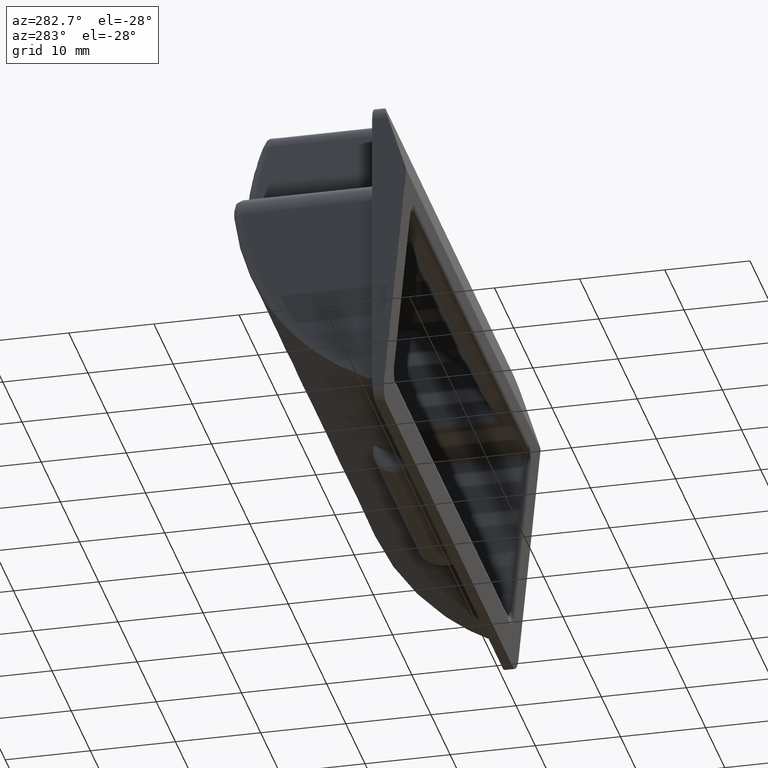
[diagram: clean part render]
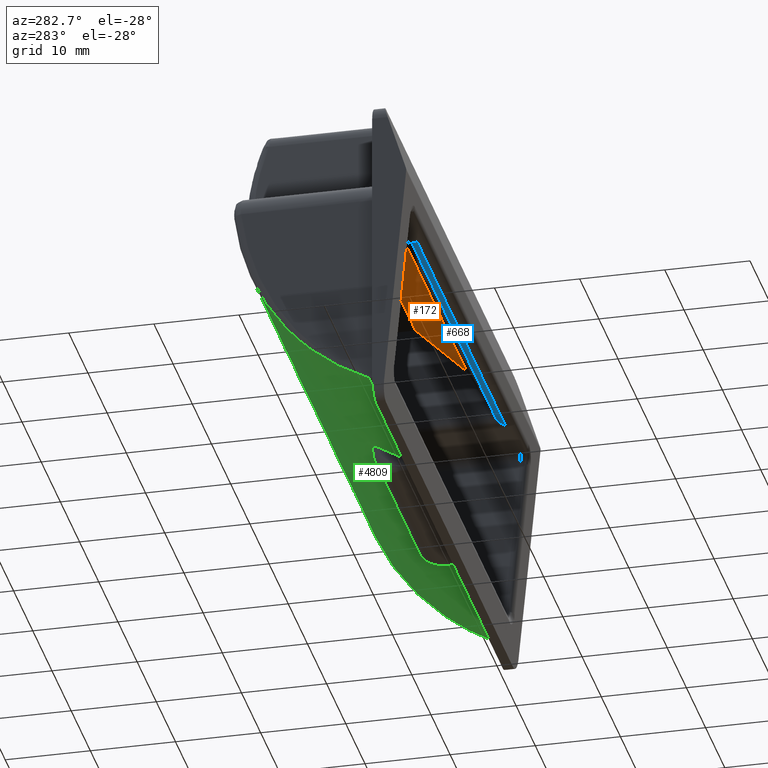
[diagram: same view with three faces highlighted in distinct colors, each labeled with its STEP entity id]
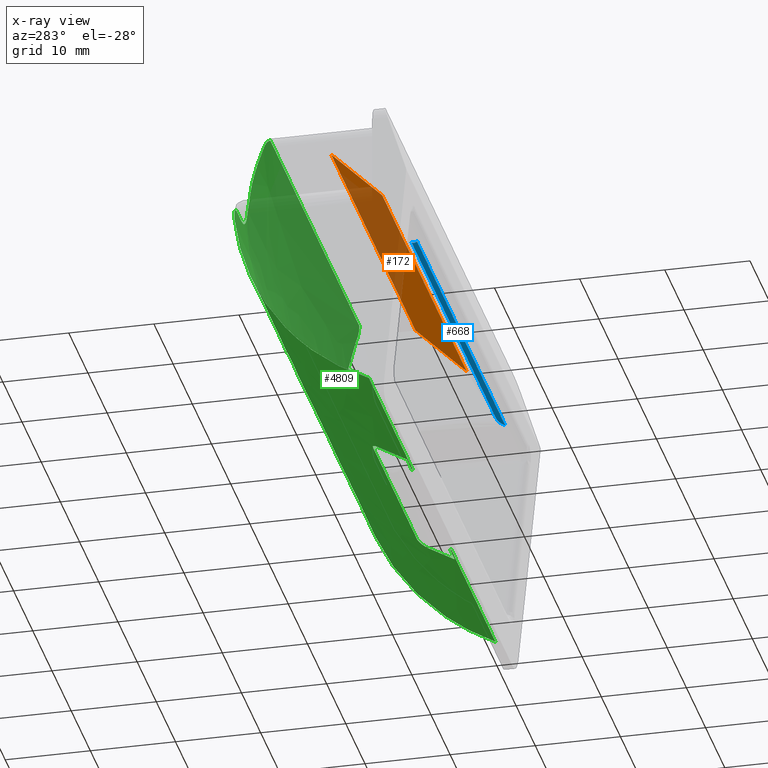
[diagram: x-ray of the same camera — body ghosted, the three highlighted faces saturated]
A machine part, auxiliary view with three faces highlighted in distinct colors.
The next image is the same camera in x-ray (body ghosted, the three faces saturated) — at least one of them is partly hidden behind the body in this view.
Their STEP definitions:

[orange] entity #172 — the highlighted face is a freeform B-spline surface patch.
#10=CARTESIAN_POINT('',(-22.0,1.749999999999800,13.250000000000000));
#11=VERTEX_POINT('',#10);
#41=CARTESIAN_POINT('',(-22.0,7.749999999999799,19.250000000000000));
#42=VERTEX_POINT('',#41);
#48=CARTESIAN_POINT('',(-22.0,7.749999999999799,19.250000000000000));
#49=CARTESIAN_POINT('',(-22.0,1.749999999999800,13.250000000000000));
#50=QUASI_UNIFORM_CURVE('',1,(#48,#49),.UNSPECIFIED.,.F.,.U.);
#51=EDGE_CURVE('',#42,#11,#50,.T.);
#85=CARTESIAN_POINT('',(22.0,1.749999999999800,13.250000000000000));
#86=VERTEX_POINT('',#85);
#92=CARTESIAN_POINT('',(22.0,7.749999999999799,19.250000000000000));
#93=VERTEX_POINT('',#92);
#94=CARTESIAN_POINT('',(22.0,7.749999999999799,19.250000000000000));
#95=CARTESIAN_POINT('',(22.0,1.749999999999800,13.250000000000000));
#96=QUASI_UNIFORM_CURVE('',1,(#94,#95),.UNSPECIFIED.,.F.,.U.);
#97=EDGE_CURVE('',#93,#86,#96,.T.);
#113=CARTESIAN_POINT('',(22.0,1.749999999999800,13.250000000000000));
#114=CARTESIAN_POINT('',(-22.0,1.749999999999800,13.250000000000000));
#115=QUASI_UNIFORM_CURVE('',1,(#113,#114),.UNSPECIFIED.,.F.,.U.);
#116=EDGE_CURVE('',#86,#11,#115,.T.);
#157=CARTESIAN_POINT('',(-24.197799914719461,1.450300011628964,12.950300011629160));
#158=CARTESIAN_POINT('',(-24.197799914719461,8.049700149303176,19.549700149303380));
#159=CARTESIAN_POINT('',(24.197801094891432,1.450300011628964,12.950300011629160));
#160=CARTESIAN_POINT('',(24.197801094891432,8.049700149303176,19.549700149303380));
#161=B_SPLINE_SURFACE_WITH_KNOTS('',1,1,((#157,#159),(#158,#160)),.UNSPECIFIED.,.F.,.F.,.U.,(2,2),(2,2),(0.0,9.332961178225743),(0.0,48.395601009610893),.UNSPECIFIED.);
#162=ORIENTED_EDGE('',*,*,#51,.F.);
#163=CARTESIAN_POINT('',(22.0,7.749999999999799,19.250000000000000));
#164=CARTESIAN_POINT('',(-22.0,7.749999999999799,19.250000000000000));
#165=QUASI_UNIFORM_CURVE('',1,(#163,#164),.UNSPECIFIED.,.F.,.U.);
#166=EDGE_CURVE('',#93,#42,#165,.T.);
#167=ORIENTED_EDGE('',*,*,#166,.F.);
#168=ORIENTED_EDGE('',*,*,#97,.T.);
#169=ORIENTED_EDGE('',*,*,#116,.T.);
#170=EDGE_LOOP('',(#162,#167,#168,#169));
#171=FACE_OUTER_BOUND('',#170,.T.);
#172=ADVANCED_FACE('',(#171),#161,.T.);

[blue] entity #668 — the highlighted face is a freeform B-spline surface patch.
#119=CARTESIAN_POINT('',(22.116360034193949,-1.676941947625150,6.781832924235230));
#120=VERTEX_POINT('',#119);
#134=CARTESIAN_POINT('',(-22.116360034193800,-1.676941947625150,6.781832924235230));
#135=VERTEX_POINT('',#134);
#136=CARTESIAN_POINT('',(22.116360034193949,-1.676941947625150,6.781832924235230));
#137=CARTESIAN_POINT('',(-22.116360034193800,-1.676941947625150,6.781832924235230));
#138=QUASI_UNIFORM_CURVE('',1,(#136,#137),.UNSPECIFIED.,.F.,.U.);
#139=EDGE_CURVE('',#120,#135,#138,.T.);
#296=CARTESIAN_POINT('',(23.0,-2.560581913431275,6.250000000000000));
#297=VERTEX_POINT('',#296);
#303=CARTESIAN_POINT('',(22.116360034193949,-1.676941947625150,6.781832924235230));
#304=CARTESIAN_POINT('',(22.398133917867732,-1.958715831299005,6.250000000000003));
#305=CARTESIAN_POINT('',(23.0,-2.560581913431275,6.250000000000000));
#313=(BOUNDED_CURVE()B_SPLINE_CURVE(2,(#303,#304,#305),.UNSPECIFIED.,.F.,.U.)CURVE()GEOMETRIC_REPRESENTATION_ITEM()QUASI_UNIFORM_CURVE()RATIONAL_B_SPLINE_CURVE((1.0,0.856786751696351,1.0))REPRESENTATION_ITEM(''));
#314=EDGE_CURVE('',#120,#297,#313,.T.);
#333=CARTESIAN_POINT('',(-23.0,-2.560581913431275,6.250000000000000));
#334=VERTEX_POINT('',#333);
#335=CARTESIAN_POINT('',(-23.0,-2.560581913431275,6.250000000000000));
#336=CARTESIAN_POINT('',(-22.398133917867685,-1.958715831298963,6.250000000000000));
#337=CARTESIAN_POINT('',(-22.116360034193839,-1.676941947625114,6.781832924235284));
#345=(BOUNDED_CURVE()B_SPLINE_CURVE(2,(#335,#336,#337),.UNSPECIFIED.,.F.,.U.)CURVE()GEOMETRIC_REPRESENTATION_ITEM()QUASI_UNIFORM_CURVE()RATIONAL_B_SPLINE_CURVE((1.0,0.856786751696335,1.0))REPRESENTATION_ITEM(''));
#346=EDGE_CURVE('',#334,#135,#345,.T.);
#644=CARTESIAN_POINT('',(24.149999999999999,-2.569308448929648,6.250038076935829));
#645=CARTESIAN_POINT('',(-24.178750000000001,-2.569308448929648,6.250038076935829));
#646=CARTESIAN_POINT('',(24.150000000000002,-1.925663492225929,6.244421072494488));
#647=CARTESIAN_POINT('',(-24.178750000000004,-1.925663492225929,6.244421072494488));
#648=CARTESIAN_POINT('',(24.150000000000002,-1.654006603403806,6.827955917884644));
#649=CARTESIAN_POINT('',(-24.178750000000008,-1.654006603403806,6.827955917884644));
#657=(BOUNDED_SURFACE()B_SPLINE_SURFACE(1,2,((#644,#646,#648),(#645,#647,#649)),.UNSPECIFIED.,.F.,.F.,.U.)B_SPLINE_SURFACE_WITH_KNOTS((2,2),(3,3),(0.0,48.328750000000007),(0.0,0.992578977236617),.UNSPECIFIED.)GEOMETRIC_REPRESENTATION_ITEM()RATIONAL_B_SPLINE_SURFACE(((1.0,0.839867797333105,0.997623310557717),(1.0,0.839867797333105,0.997623310557717)))REPRESENTATION_ITEM('')SURFACE());
#658=CARTESIAN_POINT('',(23.0,-2.560581913431275,6.250000000000000));
#659=CARTESIAN_POINT('',(-23.0,-2.560581913431275,6.250000000000000));
#660=QUASI_UNIFORM_CURVE('',1,(#658,#659),.UNSPECIFIED.,.F.,.U.);
#661=EDGE_CURVE('',#297,#334,#660,.T.);
#662=ORIENTED_EDGE('',*,*,#661,.T.);
#663=ORIENTED_EDGE('',*,*,#346,.T.);
#664=ORIENTED_EDGE('',*,*,#139,.F.);
#665=ORIENTED_EDGE('',*,*,#314,.T.);
#666=EDGE_LOOP('',(#662,#663,#664,#665));
#667=FACE_OUTER_BOUND('',#666,.T.);
#668=ADVANCED_FACE('',(#667),#657,.T.);

[green] entity #4809 — the highlighted face is a freeform B-spline surface patch.
#1675=CARTESIAN_POINT('',(-10.0,0.845232578665331,-16.250000000000000));
#1676=VERTEX_POINT('',#1675);
#1690=CARTESIAN_POINT('',(-10.0,1.0,-16.172962793631449));
#1691=VERTEX_POINT('',#1690);
#1692=CARTESIAN_POINT('',(-10.0,0.845232578665331,-16.250000000000000));
#1693=CARTESIAN_POINT('',(-10.0,0.922731102212344,-16.211712055405119));
#1694=CARTESIAN_POINT('',(-10.0,0.999999999999999,-16.172962793631449));
#1702=(BOUNDED_CURVE()B_SPLINE_CURVE(2,(#1692,#1693,#1694),.UNSPECIFIED.,.F.,.U.)CURVE()GEOMETRIC_REPRESENTATION_ITEM()QUASI_UNIFORM_CURVE()RATIONAL_B_SPLINE_CURVE((1.0,0.999995557706264,1.0))REPRESENTATION_ITEM(''));
#1703=EDGE_CURVE('',#1676,#1691,#1702,.T.);
#1734=CARTESIAN_POINT('',(10.0,0.845232578665331,-16.250000000000000));
#1735=VERTEX_POINT('',#1734);
#1763=CARTESIAN_POINT('',(10.0,1.0,-16.172962793631449));
#1764=VERTEX_POINT('',#1763);
#1770=CARTESIAN_POINT('',(10.0,0.845232578665331,-16.250000000000000));
#1771=CARTESIAN_POINT('',(10.0,0.922731102212344,-16.211712055405119));
#1772=CARTESIAN_POINT('',(10.0,0.999999999999999,-16.172962793631449));
#1780=(BOUNDED_CURVE()B_SPLINE_CURVE(2,(#1770,#1771,#1772),.UNSPECIFIED.,.F.,.U.)CURVE()GEOMETRIC_REPRESENTATION_ITEM()QUASI_UNIFORM_CURVE()RATIONAL_B_SPLINE_CURVE((1.0,0.999995557706264,1.0))REPRESENTATION_ITEM(''));
#1781=EDGE_CURVE('',#1735,#1764,#1780,.T.);
#1925=CARTESIAN_POINT('',(-12.496888817085660,4.278820596099866,-14.250000000000000));
#1926=VERTEX_POINT('',#1925);
#1956=CARTESIAN_POINT('',(-12.500000000000000,4.199277310170555,-14.303760924815760));
#1957=VERTEX_POINT('',#1956);
#1971=CARTESIAN_POINT('',(-12.496888817085660,4.278820596099866,-14.250000000000000));
#1972=CARTESIAN_POINT('',(-12.498970060910191,4.252497924147105,-14.267854252263611));
#1973=CARTESIAN_POINT('',(-12.500000000000000,4.225982756369173,-14.285775840071000));
#1974=CARTESIAN_POINT('',(-12.500000000000000,4.199277310170560,-14.303760924815760));
#1975=QUASI_UNIFORM_CURVE('',3,(#1971,#1972,#1973,#1974),.UNSPECIFIED.,.F.,.U.);
#1976=EDGE_CURVE('',#1926,#1957,#1975,.T.);
#1995=CARTESIAN_POINT('',(-11.500000000000000,5.199999999999900,-13.598661631879519));
#1996=VERTEX_POINT('',#1995);
#1997=CARTESIAN_POINT('',(-11.500000000000000,5.199999999999905,-13.598661631879530));
#1998=CARTESIAN_POINT('',(-11.569086334800570,5.199999999999907,-13.598661631879541));
#1999=CARTESIAN_POINT('',(-11.637053895325730,5.192917082393301,-13.603884073529951));
#2000=CARTESIAN_POINT('',(-11.737385243881080,5.172016086117139,-13.619251984576151));
#2001=CARTESIAN_POINT('',(-11.770585636967819,5.163283701003635,-13.625667949773939));
#2002=CARTESIAN_POINT('',(-11.834722306084871,5.142917309927955,-13.640608064011460));
#2003=CARTESIAN_POINT('',(-11.865890799119930,5.131243485641685,-13.649161510039059));
#2004=CARTESIAN_POINT('',(-11.956851436277150,5.091991474675915,-13.677865425141540));
#2005=CARTESIAN_POINT('',(-12.014483583635769,5.059858516413700,-13.701294492953810));
#2006=CARTESIAN_POINT('',(-12.119334066764820,4.987702570660044,-13.753615623262920));
#2007=CARTESIAN_POINT('',(-12.167171023133680,4.947462469827633,-13.782667413804550));
#2008=CARTESIAN_POINT('',(-12.254108657687000,4.859649490495979,-13.845659321845050));
#2009=CARTESIAN_POINT('',(-12.292248149282511,4.813073718317160,-13.878883868833670));
#2010=CARTESIAN_POINT('',(-12.342425865281950,4.739627454858540,-13.930915794340500));
#2011=CARTESIAN_POINT('',(-12.357969447361450,4.714543254785041,-13.948629275230820));
#2012=CARTESIAN_POINT('',(-12.386747605742359,4.663190044539692,-13.984765288084491));
#2013=CARTESIAN_POINT('',(-12.399984003901240,4.636890377220471,-14.003208701383620));
#2014=CARTESIAN_POINT('',(-12.435760350711240,4.557393623307223,-14.058756719816641));
#2015=CARTESIAN_POINT('',(-12.454624028153781,4.503231632980838,-14.096338320835830));
#2016=CARTESIAN_POINT('',(-12.482922549229389,4.392664788130083,-14.172479946434960));
#2017=CARTESIAN_POINT('',(-12.492364625039141,4.336040620822860,-14.211188561792911));
#2018=CARTESIAN_POINT('',(-12.496888817085660,4.278820596099861,-14.250000000000000));
#2019=B_SPLINE_CURVE_WITH_KNOTS('',3,(#1997,#1998,#1999,#2000,#2001,#2002,#2003,#2004,#2005,#2006,#2007,#2008,#2009,#2010,#2011,#2012,#2013,#2014,#2015,#2016,#2017,#2018),.UNSPECIFIED.,.F.,.U.,(4,2,2,2,2,2,2,2,2,2,4),(0.0,0.125000000000006,0.187500000000008,0.250000000000009,0.375000000000009,0.500000000000009,0.625000000000010,0.687500000000009,0.750000000000008,0.875000000000004,1.0),.UNSPECIFIED.);
#2020=EDGE_CURVE('',#1996,#1926,#2019,.T.);
#2086=CARTESIAN_POINT('',(12.496888817085660,4.278820596099866,-14.250000000000000));
#2087=VERTEX_POINT('',#2086);
#2101=CARTESIAN_POINT('',(12.500000000000000,4.199277310170555,-14.303760924815760));
#2102=VERTEX_POINT('',#2101);
#2103=CARTESIAN_POINT('',(12.500000000000000,4.199277310170560,-14.303760924815760));
#2104=CARTESIAN_POINT('',(12.500000000000000,4.225982756369173,-14.285775840071000));
#2105=CARTESIAN_POINT('',(12.498970060910191,4.252497924147105,-14.267854252263611));
#2106=CARTESIAN_POINT('',(12.496888817085710,4.278820596099826,-14.249999999999931));
#2107=QUASI_UNIFORM_CURVE('',3,(#2103,#2104,#2105,#2106),.UNSPECIFIED.,.F.,.U.);
#2108=EDGE_CURVE('',#2102,#2087,#2107,.T.);
#2140=CARTESIAN_POINT('',(11.500000000000000,5.199999999999900,-13.598661631879519));
#2141=VERTEX_POINT('',#2140);
#2147=CARTESIAN_POINT('',(12.496888817085660,4.278820596099866,-14.250000000000000));
#2148=CARTESIAN_POINT('',(12.492355263790600,4.336159017846705,-14.211108254963330));
#2149=CARTESIAN_POINT('',(12.482971274786520,4.392362270708516,-14.172686663457140));
#2150=CARTESIAN_POINT('',(12.454816433117831,4.502591059510521,-14.096781047652151));
#2151=CARTESIAN_POINT('',(12.436047971384180,4.556616941144410,-14.059296481993989));
#2152=CARTESIAN_POINT('',(12.388562770646031,4.662404206366549,-13.985383914462810));
#2153=CARTESIAN_POINT('',(12.359567578281560,4.714462050410453,-13.948742030710561));
#2154=CARTESIAN_POINT('',(12.292627549198420,4.812592189957591,-13.879226803409290));
#2155=CARTESIAN_POINT('',(12.254578643079290,4.859072939809176,-13.846070576218301));
#2156=CARTESIAN_POINT('',(12.168327505565760,4.946394275088123,-13.783435960372239));
#2157=CARTESIAN_POINT('',(12.119728825720740,4.987392482977626,-13.753839809704910));
#2158=CARTESIAN_POINT('',(12.014904867059190,5.059606722610763,-13.701477728297800));
#2159=CARTESIAN_POINT('',(11.958346000119080,5.091288663683860,-13.678378823149901));
#2160=CARTESIAN_POINT('',(11.835525420815140,5.144404166563942,-13.639538008261130));
#2161=CARTESIAN_POINT('',(11.771499962533831,5.164819775514538,-13.624542985471070));
#2162=CARTESIAN_POINT('',(11.672044320507140,5.185671400113264,-13.609211736565770));
#2163=CARTESIAN_POINT('',(11.638284016519050,5.190996701442439,-13.605291741431790));
#2164=CARTESIAN_POINT('',(11.569464928578279,5.198184128902103,-13.599999627083021));
#2165=CARTESIAN_POINT('',(11.534500705964771,5.199999999999907,-13.598661631879541));
#2166=CARTESIAN_POINT('',(11.500000000000000,5.199999999999908,-13.598661631879541));
#2167=B_SPLINE_CURVE_WITH_KNOTS('',3,(#2147,#2148,#2149,#2150,#2151,#2152,#2153,#2154,#2155,#2156,#2157,#2158,#2159,#2160,#2161,#2162,#2163,#2164,#2165,#2166),.UNSPECIFIED.,.F.,.U.,(4,2,2,2,2,2,2,2,2,4),(0.0,0.125000000000000,0.250000000000001,0.375000000000001,0.500000000000002,0.625000000000002,0.750000000000002,0.875000000000003,0.937500000000001,1.0),.UNSPECIFIED.);
#2168=EDGE_CURVE('',#2087,#2141,#2167,.T.);
#2389=CARTESIAN_POINT('',(32.0,16.833065450369752,6.642857142857049));
#2390=VERTEX_POINT('',#2389);
#2406=CARTESIAN_POINT('',(33.0,0.845232578665328,-16.250000000000000));
#2407=VERTEX_POINT('',#2406);
#2422=CARTESIAN_POINT('',(32.000000000000028,16.833065450369752,6.642857142857027));
#2423=CARTESIAN_POINT('',(32.000001800787821,16.830466377539530,6.618900625544021));
#2424=CARTESIAN_POINT('',(32.000005404238301,16.825265525828030,6.570962648346659));
#2425=CARTESIAN_POINT('',(32.000034459328440,16.817232729234789,6.499043236218136));
#2426=CARTESIAN_POINT('',(32.000080821020973,16.809024750688710,6.427067912393525));
#2427=CARTESIAN_POINT('',(32.000146192409929,16.800624735857671,6.355038951327617));
#2428=CARTESIAN_POINT('',(32.000230116439958,16.792036562976470,6.282956396104304));
#2429=CARTESIAN_POINT('',(32.000332715770149,16.783258547450622,6.210820892111961));
#2430=CARTESIAN_POINT('',(32.000453957483572,16.774290498688860,6.138632926582367));
#2431=CARTESIAN_POINT('',(32.000593850412763,16.765131826300440,6.066393032676853));
#2432=CARTESIAN_POINT('',(32.000752392188772,16.755782048343569,5.994101734720293));
#2433=CARTESIAN_POINT('',(32.000929583446521,16.746240654944440,5.921759562902135));
#2434=CARTESIAN_POINT('',(32.001125424015648,16.736507144912981,5.849367049334818));
#2435=CARTESIAN_POINT('',(32.001339913942687,16.726581015932322,5.776924729115196));
#2436=CARTESIAN_POINT('',(32.001573053214521,16.716461767207310,5.704433140043225));
#2437=CARTESIAN_POINT('',(32.001824841835273,16.706148898769829,5.631892822700969));
#2438=CARTESIAN_POINT('',(32.002095279803129,16.695641911681090,5.559304320434847));
#2439=CARTESIAN_POINT('',(32.002384367119582,16.684940307993330,5.486668179363791));
#2440=CARTESIAN_POINT('',(32.002692103783453,16.674043590776272,5.413984948380382));
#2441=CARTESIAN_POINT('',(32.003018489795572,16.662951264126050,5.341255179153832));
#2442=CARTESIAN_POINT('',(32.003363525155997,16.651662833179071,5.268479426132401));
#2443=CARTESIAN_POINT('',(32.003727209864103,16.640177804124502,5.195658246545903));
#2444=CARTESIAN_POINT('',(32.004109543920642,16.628495684217150,5.122792200408140));
#2445=CARTESIAN_POINT('',(32.004510527325380,16.616615981790460,5.049881850519300));
#2446=CARTESIAN_POINT('',(32.004930160078182,16.604538206269350,4.976927762468283));
#2447=CARTESIAN_POINT('',(32.005368442179517,16.592261868183218,4.903930504635011));
#2448=CARTESIAN_POINT('',(32.005825373629158,16.579786479178971,4.830890648192669));
#2449=CARTESIAN_POINT('',(32.006300954427232,16.567111552034081,4.757808767109907));
#2450=CARTESIAN_POINT('',(32.006795184573647,16.554236600669700,4.684685438153001));
#2451=CARTESIAN_POINT('',(32.007308064068461,16.541161140163791,4.611521240887924));
#2452=CARTESIAN_POINT('',(32.007839592912283,16.527884686764310,4.538316757682464));
#2453=CARTESIAN_POINT('',(32.008389771104333,16.514406757902449,4.465072573708166));
#2454=CARTESIAN_POINT('',(32.008958598644710,16.500726872205910,4.391789276942320));
#2455=CARTESIAN_POINT('',(32.009546075534757,16.486844549512188,4.318467458169875));
#2456=CARTESIAN_POINT('',(32.010152201772527,16.472759310881990,4.245107710985271));
#2457=CARTESIAN_POINT('',(32.010776977359683,16.458470678612510,4.171710631794268));
#2458=CARTESIAN_POINT('',(32.011420402295528,16.443978176251012,4.098276819815696));
#2459=CARTESIAN_POINT('',(32.012082476580197,16.429281328608170,4.024806877083156));
#2460=CARTESIAN_POINT('',(32.012763200213442,16.414379661771680,3.951301408446675));
#2461=CARTESIAN_POINT('',(32.013462573196463,16.399272703119799,3.877761021574332));
#2462=CARTESIAN_POINT('',(32.014180595527698,16.383959981334861,3.804186326953747));
#2463=CARTESIAN_POINT('',(32.014917267208318,16.368441026417059,3.730577937893665));
#2464=CARTESIAN_POINT('',(32.015672588238182,16.352715369698000,3.656936470525334));
#2465=CARTESIAN_POINT('',(32.016446558617012,16.336782543854500,3.583262543803942));
#2466=CARTESIAN_POINT('',(32.017239178345001,16.320642082922291,3.509556779509917));
#2467=CARTESIAN_POINT('',(32.018050447422503,16.304293522309859,3.435819802250254));
#2468=CARTESIAN_POINT('',(32.018880365848929,16.287736398812282,3.362052239459720));
#2469=CARTESIAN_POINT('',(32.019728933624563,16.270970250625069,3.288254721402048));
#2470=CARTESIAN_POINT('',(32.020596150750379,16.253994617358138,3.214427881171073));
#2471=CARTESIAN_POINT('',(32.021482017224528,16.236809040049739,3.140572354691742));
#2472=CARTESIAN_POINT('',(32.022386533049051,16.219413061180429,3.066688780721231));
#2473=CARTESIAN_POINT('',(32.023309698222441,16.201806224687179,2.992777800849801));
#2474=CARTESIAN_POINT('',(32.024251512745728,16.183988075977410,2.918840059501782));
#2475=CARTESIAN_POINT('',(32.025211976618550,16.165958161943070,2.844876203936366));
#2476=CARTESIAN_POINT('',(32.026191089840893,16.147716030974880,2.770886884248426));
#2477=CARTESIAN_POINT('',(32.027188852412820,16.129261232976440,2.696872753369247));
#2478=CARTESIAN_POINT('',(32.028205264334950,16.110593319378491,2.622834467067213));
#2479=CARTESIAN_POINT('',(32.029240325606317,16.091711843153259,2.548772683948394));
#2480=CARTESIAN_POINT('',(32.030294036227872,16.072616358828618,2.474688065457157));
#2481=CARTESIAN_POINT('',(32.031366396199033,16.053306422502569,2.400581275876627));
#2482=CARTESIAN_POINT('',(32.032457405520049,16.033781591857551,2.326452982329170));
#2483=CARTESIAN_POINT('',(32.033567064191288,16.014041426174899,2.252303854776765));
#2484=CARTESIAN_POINT('',(32.034695372212177,15.994085486349270,2.178134566021318));
#2485=CARTESIAN_POINT('',(32.035842329583453,15.973913334903230,2.103945791704965));
#2486=CARTESIAN_POINT('',(32.037007936304427,15.953524536001639,2.029738210310257));
#2487=CARTESIAN_POINT('',(32.038192192375917,15.932918655466390,1.955512503160338));
#2488=CARTESIAN_POINT('',(32.039395097796962,15.912095260790890,1.881269354418985));
#2489=CARTESIAN_POINT('',(32.040616652568858,15.891053921154800,1.807009451090713));
#2490=CARTESIAN_POINT('',(32.041856856690330,15.869794207438639,1.732733483020661));
#2491=CARTESIAN_POINT('',(32.043115710162667,15.848315692238581,1.658442142894579));
#2492=CARTESIAN_POINT('',(32.044393212984929,15.826617949881170,1.584136126238609));
#2493=CARTESIAN_POINT('',(32.045689365157941,15.804700556438121,1.509816131419122));
#2494=CARTESIAN_POINT('',(32.047004166680857,15.782563089741149,1.435482859642386));
#2495=CARTESIAN_POINT('',(32.048337617554509,15.760205129396841,1.361137014954292));
#2496=CARTESIAN_POINT('',(32.049689717778570,15.737626256801571,1.286779304239890));
#2497=CARTESIAN_POINT('',(32.051060467353182,15.714826055156401,1.212410437222966));
#2498=CARTESIAN_POINT('',(32.052449866278359,15.691804109482121,1.138031126465486));
#2499=CARTESIAN_POINT('',(32.053857914554108,15.668560006634140,1.063642087367018));
#2500=CARTESIAN_POINT('',(32.055284612180593,15.645093335317680,0.989244038164070));
#2501=CARTESIAN_POINT('',(32.056729959157458,15.621403686102770,0.914837699929361));
#2502=CARTESIAN_POINT('',(32.058193955485528,15.597490651439321,0.840423796571060));
#2503=CARTESIAN_POINT('',(32.059676601164107,15.573353825672370,0.766003054831893));
#2504=CARTESIAN_POINT('',(32.061177896193350,15.548992805057210,0.691576204288253));
#2505=CARTESIAN_POINT('',(32.062697840573648,15.524407187774599,0.617143977349240));
#2506=CARTESIAN_POINT('',(32.064236434304753,15.499596573946040,0.542707109255544));
#2507=CARTESIAN_POINT('',(32.065793677386921,15.474560565649069,0.468266338078438));
#2508=CARTESIAN_POINT('',(32.067369569819569,15.449298766932470,0.393822404718327));
#2509=CARTESIAN_POINT('',(32.068964111603670,15.423810783832000,0.319376052904386));
#2510=CARTESIAN_POINT('',(32.070577302738840,15.398096224384460,0.244928029190100));
#2511=CARTESIAN_POINT('',(32.072209143225230,15.372154698647959,0.170479082963468));
#2512=CARTESIAN_POINT('',(32.073859633060202,15.345985818699299,0.096029966402223));
#2513=CARTESIAN_POINT('',(32.075528772256952,15.319589198716930,0.021581434634471));
#2514=CARTESIAN_POINT('',(32.077216560765677,15.292964454744469,-0.052865754869196));
#2515=CARTESIAN_POINT('',(32.078922998770743,15.266111205647690,-0.127310840031337));
#2516=CARTESIAN_POINT('',(32.080648085587121,15.239029069611940,-0.201753062638259));
#2517=CARTESIAN_POINT('',(32.082391823770273,15.211717677306391,-0.276191636690562));
#2518=CARTESIAN_POINT('',(32.084154203774951,15.184176622757970,-0.350625866697905));
#2519=CARTESIAN_POINT('',(32.091989810765732,15.062000638975030,-0.678069046953588));
#2520=CARTESIAN_POINT('',(32.106791003252660,14.834010807114780,-1.259263350049014));
#2521=CARTESIAN_POINT('',(32.130271430238537,14.478184664054259,-2.089850307889864));
#2522=CARTESIAN_POINT('',(32.156138026651888,14.090626378111111,-2.921384642563850));
#2523=CARTESIAN_POINT('',(32.183784960133913,13.679535216093891,-3.734674703642869));
#2524=CARTESIAN_POINT('',(32.213103877744658,13.245640116469360,-4.530190204855395));
#2525=CARTESIAN_POINT('',(32.243982786421221,12.789508108886160,-5.308439955090210));
#2526=CARTESIAN_POINT('',(32.277099528205490,12.300186996022729,-6.086274131199959));
#2527=CARTESIAN_POINT('',(32.311512691100518,11.790737962019071,-6.841413654997038));
#2528=CARTESIAN_POINT('',(32.347144149491832,11.261703182816820,-7.575024792710137));
#2529=CARTESIAN_POINT('',(32.383911512829627,10.713369846157580,-8.288269352681706));
#2530=CARTESIAN_POINT('',(32.422858537843133,10.129163616392450,-9.000727345765606));
#2531=CARTESIAN_POINT('',(32.462534024221988,9.529974981001368,-9.685347380490544));
#2532=CARTESIAN_POINT('',(32.502926522330903,8.915677994263044,-10.344592095453860));
#2533=CARTESIAN_POINT('',(32.544018732554584,8.285720078569232,-10.980796025242650));
#2534=CARTESIAN_POINT('',(32.587430094628708,7.614070097121842,-11.617810864713340));
#2535=CARTESIAN_POINT('',(32.630738086706657,6.937228392042782,-12.219273282927849));
#2536=CARTESIAN_POINT('',(32.674130867120851,6.252540178400920,-12.790880731034751));
#2537=CARTESIAN_POINT('',(32.717787064715282,5.556493223624542,-13.337787450299340));
#2538=CARTESIAN_POINT('',(32.764493515603071,4.802877486866749,-13.892573448107610));
#2539=CARTESIAN_POINT('',(32.798069299785432,4.254027526233298,-14.269231121178310));
#2540=CARTESIAN_POINT('',(32.817300532393858,3.937441433172669,-14.478080310985741));
#2541=CARTESIAN_POINT('',(32.821204115847557,3.873132347681251,-14.520263676038400));
#2542=CARTESIAN_POINT('',(32.825224203733711,3.806842603486042,-14.563491602900591));
#2543=CARTESIAN_POINT('',(32.829360893806736,3.738562658489424,-14.607748529132779));
#2544=CARTESIAN_POINT('',(32.833614159002359,3.668282862026179,-14.653018345400280));
#2545=CARTESIAN_POINT('',(32.837984007111253,3.595993352593717,-14.699284470530561));
#2546=CARTESIAN_POINT('',(32.842470436171837,3.521684094706036,-14.746529826001590));
#2547=CARTESIAN_POINT('',(32.847073446920810,3.445344877141295,-14.794736838457091));
#2548=CARTESIAN_POINT('',(32.851793039324683,3.366965322218639,-14.843887434341390));
#2549=CARTESIAN_POINT('',(32.856629213549589,3.286534892260629,-14.893963036675190));
#2550=CARTESIAN_POINT('',(32.861581969690143,3.204042897100974,-14.944944561184711));
#2551=CARTESIAN_POINT('',(32.866651307849409,3.119478501566036,-14.996812412565360));
#2552=CARTESIAN_POINT('',(32.871837228116561,3.032830733229872,-15.049546480667770));
#2553=CARTESIAN_POINT('',(32.877139730574207,2.944088490362247,-15.103126136670930));
#2554=CARTESIAN_POINT('',(32.882558815298303,2.853240550094249,-15.157530229229600));
#2555=CARTESIAN_POINT('',(32.888094482358092,2.760275576797037,-15.212737080605701));
#2556=CARTESIAN_POINT('',(32.893746731817707,2.665182130677200,-15.268724482786411));
#2557=CARTESIAN_POINT('',(32.899515563735847,2.567948676590587,-15.325469693595350));
#2558=CARTESIAN_POINT('',(32.905400978167847,2.468563593074672,-15.382949432797410));
#2559=CARTESIAN_POINT('',(32.911402975162652,2.367015181608295,-15.441139878217751));
#2560=CARTESIAN_POINT('',(32.917521554768193,2.263291676073111,-15.500016661822370));
#2561=CARTESIAN_POINT('',(32.923756717026428,2.157381252525058,-15.559554865983969));
#2562=CARTESIAN_POINT('',(32.930108461979053,2.049272038866649,-15.619729019104010));
#2563=CARTESIAN_POINT('',(32.936576789659782,1.938952126000202,-15.680513093794010));
#2564=CARTESIAN_POINT('',(32.943161700116462,1.826409574410316,-15.741880495364750));
#2565=CARTESIAN_POINT('',(32.949863193331410,1.711632439375150,-15.803804087598140));
#2566=CARTESIAN_POINT('',(32.956681269525312,1.594608725952668,-15.866256075902440));
#2567=CARTESIAN_POINT('',(32.963615927999093,1.475326613934781,-15.929208436640581));
#2568=CARTESIAN_POINT('',(32.970667171561331,1.353773650874052,-15.992631256695679));
#2569=CARTESIAN_POINT('',(32.977834989596943,1.229939893421843,-16.056499066733821));
#2570=CARTESIAN_POINT('',(32.985119422801731,1.103805953347165,-16.120766610653860));
#2571=CARTESIAN_POINT('',(32.992520315779743,0.975388739850070,-16.185461431933440));
#2572=CARTESIAN_POINT('',(32.997494017854862,0.888839903039707,-16.228377095277501));
#2573=CARTESIAN_POINT('',(33.000000000000028,0.845232578665370,-16.249999999999879));
#2574=B_SPLINE_CURVE_WITH_KNOTS('',3,(#2422,#2423,#2424,#2425,#2426,#2427,#2428,#2429,#2430,#2431,#2432,#2433,#2434,#2435,#2436,#2437,#2438,#2439,#2440,#2441,#2442,#2443,#2444,#2445,#2446,#2447,#2448,#2449,#2450,#2451,#2452,#2453,#2454,#2455,#2456,#2457,#2458,#2459,#2460,#2461,#2462,#2463,#2464,#2465,#2466,#2467,#2468,#2469,#2470,#2471,#2472,#2473,#2474,#2475,#2476,#2477,#2478,#2479,#2480,#2481,#2482,#2483,#2484,#2485,#2486,#2487,#2488,#2489,#2490,#2491,#2492,#2493,#2494,#2495,#2496,#2497,#2498,#2499,#2500,#2501,#2502,#2503,#2504,#2505,#2506,#2507,#2508,#2509,#2510,#2511,#2512,#2513,#2514,#2515,#2516,#2517,#2518,#2519,#2520,#2521,#2522,#2523,#2524,#2525,#2526,#2527,#2528,#2529,#2530,#2531,#2532,#2533,#2534,#2535,#2536,#2537,#2538,#2539,#2540,#2541,#2542,#2543,#2544,#2545,#2546,#2547,#2548,#2549,#2550,#2551,#2552,#2553,#2554,#2555,#2556,#2557,#2558,#2559,#2560,#2561,#2562,#2563,#2564,#2565,#2566,#2567,#2568,#2569,#2570,#2571,#2572,#2573),.UNSPECIFIED.,.F.,.U.,(4,1,1,1,1,1,1,1,1,1,1,1,1,1,1,1,1,1,1,1,1,1,1,1,1,1,1,1,1,1,1,1,1,1,1,1,1,1,1,1,1,1,1,1,1,1,1,1,1,1,1,1,1,1,1,1,1,1,1,1,1,1,1,1,1,1,1,1,1,1,1,1,1,1,1,1,1,1,1,1,1,1,1,1,1,1,1,1,1,1,1,1,1,1,1,1,1,1,1,1,1,1,1,1,1,1,1,1,1,1,1,1,1,1,1,1,1,1,1,1,1,1,1,1,1,1,1,1,1,1,1,1,1,1,1,1,1,1,1,1,1,1,1,1,1,1,1,1,1,4),(0.0,0.002479765501139,0.004962112835319,0.007447042166881,0.009934553659656,0.012424647476963,0.014917323781616,0.017412582735922,0.019910424501685,0.022410849240207,0.024913857112290,0.027419448278242,0.029927622897871,0.032438381130495,0.034951723134940,0.037467649069541,0.039986159092148,0.042507253360124,0.045030932030350,0.047557195259223,0.050086043202663,0.052617476016112,0.055151493854534,0.057688096872422,0.060227285223797,0.062769059062208,0.065313418540736,0.067860363811998,0.070409895028145,0.072962012340866,0.075516715901389,0.078074005860483,0.080633882368460,0.083196345575178,0.085761395630041,0.088329032681999,0.090899256879556,0.093472068370766,0.096047467303237,0.098625453824133,0.101206028080174,0.103789190217641,0.106374940382374,0.108963278719777,0.111554205374817,0.114147720492026,0.116743824215508,0.119342516688931,0.121943798055538,0.124547668458143,0.127154128039134,0.129763176940476,0.132374815303711,0.134989043269961,0.137605860979930,0.140225268573902,0.142847266191747,0.145471853972921,0.148099032056468,0.150728800581019,0.153361159684797,0.155996109505618,0.158633650180891,0.161273781847620,0.163916504642408,0.166561818701453,0.169209724160557,0.171860221155123,0.174513309820153,0.177168990290260,0.179827262699658,0.182488127182172,0.185151583871235,0.187817632899891,0.190486274400797,0.193157508506221,0.195831335348051,0.198507755057786,0.201186767766548,0.203868373605076,0.206552572703731,0.209239365192496,0.211928751200978,0.214620730858410,0.217315304293652,0.220012471635191,0.222712233011144,0.225414588549260,0.228119538376919,0.230827082621136,0.233537221408561,0.236249954865479,0.238965283117817,0.241683206291136,0.244403724510642,0.247126837901180,0.249852546587241,0.280378277424590,0.311379426366606,0.342856147647313,0.374808588509102,0.405183925891607,0.436140164708011,0.467677407139856,0.499795749633032,0.529930738450147,0.560812006663152,0.592439613723998,0.624813614571555,0.654508961828777,0.685248107327159,0.717031075527202,0.749857887470514,0.778516469630573,0.808913248084059,0.841048211834742,0.874921346711340,0.877486347125252,0.880127926417531,0.882846084589521,0.885640821642019,0.888512137575329,0.891460032389294,0.894484506083337,0.897585558656488,0.900763190107412,0.904017400434434,0.907348189635557,0.910755557708484,0.914239504650632,0.917800030459148,0.921437135130923,0.925150818662601,0.928941081050594,0.932807922291088,0.936751342380052,0.940771341313249,0.944867919086240,0.949041075694391,0.953290811132879,0.957617125396699,0.962020018480668,0.966499490379425,0.971055541087445,0.975688170599033,0.980397378908333,0.985183166009328,0.990045531895847,0.994984476561563,1.000000000000000),.UNSPECIFIED.);
#2575=EDGE_CURVE('',#2390,#2407,#2574,.T.);
#2686=CARTESIAN_POINT('',(30.0,16.981499200668800,8.714285714285712));
#2687=VERTEX_POINT('',#2686);
#2726=CARTESIAN_POINT('',(30.0,16.981499200668800,8.714285714285712));
#2727=CARTESIAN_POINT('',(30.067499842119659,16.981426303030641,8.712234894205645));
#2728=CARTESIAN_POINT('',(30.202184593845988,16.981280847871190,8.708142822511334));
#2729=CARTESIAN_POINT('',(30.402218013345170,16.980072344957200,8.674821293752551));
#2730=CARTESIAN_POINT('',(30.598986584756279,16.978058808565631,8.621518553028482));
#2731=CARTESIAN_POINT('',(30.850930095258729,16.974142269330901,8.523650354032080));
#2732=CARTESIAN_POINT('',(31.144900761934480,16.966878126612841,8.357850771857533));
#2733=CARTESIAN_POINT('',(31.446358817086669,16.953025648255981,8.091483084007685));
#2734=CARTESIAN_POINT('',(31.691699687276230,16.933551275696239,7.778190738859393));
#2735=CARTESIAN_POINT('',(31.870919601108600,16.907463390881031,7.426320469138739));
#2736=CARTESIAN_POINT('',(31.981067514063341,16.874603357836680,7.043714958610720));
#2737=CARTESIAN_POINT('',(31.993600538348002,16.847105880497569,6.778353042783143));
#2738=CARTESIAN_POINT('',(32.000000000000028,16.833065450369752,6.642857142857027));
#2739=B_SPLINE_CURVE_WITH_KNOTS('',3,(#2726,#2727,#2728,#2729,#2730,#2731,#2732,#2733,#2734,#2735,#2736,#2737,#2738),.UNSPECIFIED.,.F.,.U.,(4,1,1,1,1,1,1,1,1,1,4),(0.0,0.063236716535842,0.126178390929035,0.189540030359452,0.254022672604526,0.379191327126696,0.503599509096213,0.628930389559353,0.750362209924463,0.872532963457234,1.000000000000000),.UNSPECIFIED.);
#2740=EDGE_CURVE('',#2687,#2390,#2739,.T.);
#2773=CARTESIAN_POINT('',(27.676413000000000,16.981499200668800,8.714285714285712));
#2774=VERTEX_POINT('',#2773);
#2796=CARTESIAN_POINT('',(27.676413000000000,16.981499200668800,8.714285714285712));
#2797=CARTESIAN_POINT('',(28.450942000000019,16.981499200668821,8.714285714285774));
#2798=CARTESIAN_POINT('',(29.225471000000020,16.981499200668821,8.714285714285774));
#2799=CARTESIAN_POINT('',(30.000000000000028,16.981499200668821,8.714285714285774));
#2800=QUASI_UNIFORM_CURVE('',3,(#2796,#2797,#2798,#2799),.UNSPECIFIED.,.F.,.U.);
#2801=EDGE_CURVE('',#2774,#2687,#2800,.T.);
#2912=CARTESIAN_POINT('',(24.684227032561349,16.941102798931549,11.597313936957599));
#2913=VERTEX_POINT('',#2912);
#2948=CARTESIAN_POINT('',(24.684227032561349,16.941102798931549,11.597313936957599));
#2949=CARTESIAN_POINT('',(24.691126386451732,16.945792261590132,11.521101522160791));
#2950=CARTESIAN_POINT('',(24.704884152350530,16.955143358876938,11.369128949371410));
#2951=CARTESIAN_POINT('',(24.746218408949591,16.966745022775740,11.143940226338101));
#2952=CARTESIAN_POINT('',(24.802644704248038,16.976579962532330,10.922293113713939));
#2953=CARTESIAN_POINT('',(24.875645641836432,16.984560732344882,10.704290159703190));
#2954=CARTESIAN_POINT('',(25.008160553815429,16.993869785584501,10.385553346219410));
#2955=CARTESIAN_POINT('',(25.234925909467009,17.000320749144521,9.985036532471453));
#2956=CARTESIAN_POINT('',(25.605669043424040,17.000210466611730,9.548404637652919));
#2957=CARTESIAN_POINT('',(26.049585214753460,16.995137564379689,9.188969170608193));
#2958=CARTESIAN_POINT('',(26.501023745192040,16.989162984173781,8.950715363735922));
#2959=CARTESIAN_POINT('',(26.922008188739749,16.984720038019208,8.806919065407026));
#2960=CARTESIAN_POINT('',(27.296615990448750,16.982019014356052,8.728658983229810));
#2961=CARTESIAN_POINT('',(27.549688056673730,16.981672644267359,8.719081570089109));
#2962=CARTESIAN_POINT('',(27.676413000000011,16.981499200668821,8.714285714285774));
#2963=B_SPLINE_CURVE_WITH_KNOTS('',3,(#2948,#2949,#2950,#2951,#2952,#2953,#2954,#2955,#2956,#2957,#2958,#2959,#2960,#2961,#2962),.UNSPECIFIED.,.F.,.U.,(4,1,1,1,1,1,1,1,1,1,1,1,4),(0.0,0.050323062417721,0.100347499638424,0.150335684182367,0.200550556845900,0.251251531672255,0.376974431095643,0.500953243122860,0.625232624606423,0.749828825834917,0.833939189380429,0.916845635599417,1.0),.UNSPECIFIED.);
#2964=EDGE_CURVE('',#2913,#2774,#2963,.T.);
#3017=CARTESIAN_POINT('',(24.120983320408001,15.252757474147250,19.663990622111399));
#3018=VERTEX_POINT('',#3017);
#3041=CARTESIAN_POINT('',(24.120983320408001,15.252757474147250,19.663990622111399));
#3042=CARTESIAN_POINT('',(24.308731223163019,16.195094349495822,17.073582862001789));
#3043=CARTESIAN_POINT('',(24.496479127862010,16.765513359389729,14.348201005213680));
#3044=CARTESIAN_POINT('',(24.684227032561012,16.941102798931531,11.597313936957550));
#3045=QUASI_UNIFORM_CURVE('',3,(#3041,#3042,#3043,#3044),.UNSPECIFIED.,.F.,.U.);
#3046=EDGE_CURVE('',#3018,#2913,#3045,.T.);
#3131=CARTESIAN_POINT('',(23.123588000000051,14.622359023948260,21.250000000000000));
#3132=VERTEX_POINT('',#3131);
#3133=CARTESIAN_POINT('',(23.123588000000051,14.622359023948260,21.250000000000000));
#3134=CARTESIAN_POINT('',(23.129344517470798,14.623266822223330,21.247898069692720));
#3135=CARTESIAN_POINT('',(23.140839715495709,14.625079605905650,21.243700722036198));
#3136=CARTESIAN_POINT('',(23.157960980285100,14.627886384934101,21.237196468145498));
#3137=CARTESIAN_POINT('',(23.174958197477309,14.630751758450909,21.230552204184161));
#3138=CARTESIAN_POINT('',(23.191824720668318,14.633682166793109,21.223752343834271));
#3139=CARTESIAN_POINT('',(23.208562321804560,14.636675745441510,21.216800982048341));
#3140=CARTESIAN_POINT('',(23.225170527020989,14.639732842053220,21.209696962062640));
#3141=CARTESIAN_POINT('',(23.241649461648610,14.642853210704800,21.202440527073620));
#3142=CARTESIAN_POINT('',(23.257999091090682,14.646036760542909,21.195031545393661));
#3143=CARTESIAN_POINT('',(23.274219423415602,14.649283355986030,21.187469984117911));
#3144=CARTESIAN_POINT('',(23.290310455283219,14.652592870052541,21.179755782697999));
#3145=CARTESIAN_POINT('',(23.306272186383509,14.655965170121030,21.171888886700781));
#3146=CARTESIAN_POINT('',(23.322104615583729,14.659400121730640,21.163869238798860));
#3147=CARTESIAN_POINT('',(23.337807741961271,14.662897587562730,21.155696781184929));
#3148=CARTESIAN_POINT('',(23.353381564530000,14.666457427711499,21.147371454930600));
#3149=CARTESIAN_POINT('',(23.368826082316769,14.670079499609001,21.138893200164080));
#3150=CARTESIAN_POINT('',(23.384141294345490,14.673763658042160,21.130261956030520));
#3151=CARTESIAN_POINT('',(23.399327199642471,14.677509755147700,21.121477660703921));
#3152=CARTESIAN_POINT('',(23.414383797240870,14.681317640409411,21.112540251394311));
#3153=CARTESIAN_POINT('',(23.429311086180959,14.685187160658369,21.103449664347231));
#3154=CARTESIAN_POINT('',(23.444109065514731,14.689118160069910,21.094205834851461));
#3155=CARTESIAN_POINT('',(23.458777734307649,14.693110480162840,21.084808697241229));
#3156=CARTESIAN_POINT('',(23.473317091641619,14.697163959797800,21.075258184900509));
#3157=CARTESIAN_POINT('',(23.487727136617710,14.701278435175629,21.065554230267239));
#3158=CARTESIAN_POINT('',(23.502007868358501,14.705453739836440,21.055696764836082));
#3159=CARTESIAN_POINT('',(23.516159286011050,14.709689704657290,21.045685719164311));
#3160=CARTESIAN_POINT('',(23.530181388748169,14.713986157853901,21.035521022868139));
#3161=CARTESIAN_POINT('',(23.544074175774568,14.718342924968621,21.025202604652090));
#3162=CARTESIAN_POINT('',(23.557837646314841,14.722759828909020,21.014730392217110));
#3163=CARTESIAN_POINT('',(23.571471799667229,14.727236689799190,21.004104312616668));
#3164=CARTESIAN_POINT('',(23.584976635015330,14.731773325527380,20.993324290946870));
#3165=CARTESIAN_POINT('',(23.598352152137959,14.736369549697500,20.982390255250611));
#3166=CARTESIAN_POINT('',(23.611598348767000,14.741025179274461,20.971302118214311));
#3167=CARTESIAN_POINT('',(23.624715230466091,14.745740006012941,20.960059845573578));
#3168=CARTESIAN_POINT('',(23.637702773718349,14.750513903232010,20.948663200472179));
#3169=CARTESIAN_POINT('',(23.663826345556881,14.760331909465190,20.925196600490239));
#3170=CARTESIAN_POINT('',(23.702124502146422,14.775568406888000,20.888667483476620));
#3171=CARTESIAN_POINT('',(23.750596068753229,14.796710804765571,20.837711427623510));
#3172=CARTESIAN_POINT('',(23.795988862131502,14.818375219941400,20.785209614358362));
#3173=CARTESIAN_POINT('',(23.850851936488759,14.847223014909551,20.714904734863239));
#3174=CARTESIAN_POINT('',(23.911427636730089,14.884365921289019,20.623625290110990));
#3175=CARTESIAN_POINT('',(23.967179206160360,14.926710310064969,20.518306723646589));
#3176=CARTESIAN_POINT('',(24.009838695188090,14.966534927402840,20.418140843563641));
#3177=CARTESIAN_POINT('',(24.046534806121969,15.008421534598090,20.311736618338170));
#3178=CARTESIAN_POINT('',(24.077542810506440,15.055434113339739,20.190807944277861));
#3179=CARTESIAN_POINT('',(24.097388576053849,15.103522675082770,20.065256046921139));
#3180=CARTESIAN_POINT('',(24.106075765610640,15.139540787594729,19.969963369269571));
#3181=CARTESIAN_POINT('',(24.110270447400548,15.165299716575710,19.901229099359188));
#3182=CARTESIAN_POINT('',(24.112330585544949,15.181748193839409,19.857090231244872));
#3183=CARTESIAN_POINT('',(24.113911816583389,15.196244473155810,19.818002218652179));
#3184=CARTESIAN_POINT('',(24.115163778176861,15.208014878626139,19.786150617950842));
#3185=CARTESIAN_POINT('',(24.116456183395030,15.221517299407781,19.749477120763359));
#3186=CARTESIAN_POINT('',(24.118097725118339,15.236452400363429,19.708746934098681));
#3187=CARTESIAN_POINT('',(24.120037875209110,15.247415230284430,19.678654716012851));
#3188=CARTESIAN_POINT('',(24.120983320408019,15.252757474147250,19.663990622111349));
#3189=B_SPLINE_CURVE_WITH_KNOTS('',3,(#3133,#3134,#3135,#3136,#3137,#3138,#3139,#3140,#3141,#3142,#3143,#3144,#3145,#3146,#3147,#3148,#3149,#3150,#3151,#3152,#3153,#3154,#3155,#3156,#3157,#3158,#3159,#3160,#3161,#3162,#3163,#3164,#3165,#3166,#3167,#3168,#3169,#3170,#3171,#3172,#3173,#3174,#3175,#3176,#3177,#3178,#3179,#3180,#3181,#3182,#3183,#3184,#3185,#3186,#3187,#3188),.UNSPECIFIED.,.F.,.U.,(4,1,1,1,1,1,1,1,1,1,1,1,1,1,1,1,1,1,1,1,1,1,1,1,1,1,1,1,1,1,1,1,1,1,1,1,1,1,1,1,1,1,1,1,1,1,1,1,1,1,1,1,1,4),(0.0,0.008765857949378,0.017504554359136,0.026217127069611,0.034904623283879,0.043568099298341,0.052208620218364,0.060827259660559,0.069425099437844,0.078003229232923,0.086562746255994,0.095104754889711,0.103630366320312,0.112140698157590,0.120636874040446,0.129120023233078,0.137591280209784,0.146051784227809,0.154502678894138,0.162945111720103,0.171380233670813,0.179809198706160,0.188233163316227,0.196653286051569,0.205070727049010,0.213486647554495,0.221902209443352,0.230318574739508,0.238736905133950,0.247158361504684,0.255584103437534,0.264015288750141,0.272453073019286,0.280898609113106,0.289353046728423,0.297817531934991,0.332491595817562,0.367248460062539,0.401692393690993,0.435329014768428,0.499823694267393,0.565098516624340,0.614011100120490,0.663737437977782,0.734922096911787,0.802491029832533,0.855835784306044,0.879543398259022,0.906520686081134,0.922548686944941,0.938575453803259,0.954601054543780,0.977876858485460,1.0),.UNSPECIFIED.);
#3190=EDGE_CURVE('',#3132,#3018,#3189,.T.);
#3310=CARTESIAN_POINT('',(-33.0,0.845232578665328,-16.250000000000000));
#3311=VERTEX_POINT('',#3310);
#3312=CARTESIAN_POINT('',(-32.0,16.833065450369752,6.642857142857049));
#3313=VERTEX_POINT('',#3312);
#3314=CARTESIAN_POINT('',(-33.0,0.845232578665328,-16.250000000000000));
#3315=CARTESIAN_POINT('',(-32.998742217443883,0.867126701445313,-16.239163399060271));
#3316=CARTESIAN_POINT('',(-32.996236217188702,0.910748452288344,-16.217572604538660));
#3317=CARTESIAN_POINT('',(-32.992492130969140,0.975828030332117,-16.185101901732999));
#3318=CARTESIAN_POINT('',(-32.988777156025158,1.040334033114973,-16.152730447242661));
#3319=CARTESIAN_POINT('',(-32.985091332134203,1.104260576042300,-16.120447275748159));
#3320=CARTESIAN_POINT('',(-32.981434648760931,1.167611077516724,-16.088260212005100));
#3321=CARTESIAN_POINT('',(-32.977807108693192,1.230386497123503,-16.056172057377530));
#3322=CARTESIAN_POINT('',(-32.974208711192723,1.292588450320877,-16.024186897092211));
#3323=CARTESIAN_POINT('',(-32.970639456454300,1.354218383088242,-15.992308430013139));
#3324=CARTESIAN_POINT('',(-32.967099344425201,1.415277790005642,-15.960540411063210));
#3325=CARTESIAN_POINT('',(-32.963588375118057,1.475768156035690,-15.928886534214900));
#3326=CARTESIAN_POINT('',(-32.960106548529247,1.535690971467403,-15.897350463606600));
#3327=CARTESIAN_POINT('',(-32.956653864658058,1.595047727494916,-15.865935825443991));
#3328=CARTESIAN_POINT('',(-32.953230323504123,1.653839916927627,-15.834646210283751));
#3329=CARTESIAN_POINT('',(-32.949835925065763,1.712069033546507,-15.803485172570580));
#3330=CARTESIAN_POINT('',(-32.946470669342972,1.769736571823689,-15.772456230902030));
#3331=CARTESIAN_POINT('',(-32.943134556334570,1.826844026550382,-15.741562868102161));
#3332=CARTESIAN_POINT('',(-32.939827586039229,1.883392892493840,-15.710808531346659));
#3333=CARTESIAN_POINT('',(-32.936549758456252,1.939384664051346,-15.680196632275420));
#3334=CARTESIAN_POINT('',(-32.933301073584531,1.994820834909504,-15.649730547109270));
#3335=CARTESIAN_POINT('',(-32.930081531422850,2.049702897706848,-15.619413616766639));
#3336=CARTESIAN_POINT('',(-32.926891131970883,2.104032343700220,-15.589249146980890));
#3337=CARTESIAN_POINT('',(-32.923729875226513,2.157810662434579,-15.559240408418351));
#3338=CARTESIAN_POINT('',(-32.920597761188979,2.211039341416758,-15.529390636796810));
#3339=CARTESIAN_POINT('',(-32.917494789856953,2.263719865792496,-15.499703033004490));
#3340=CARTESIAN_POINT('',(-32.914420961229190,2.315853718027307,-15.470180763219560));
#3341=CARTESIAN_POINT('',(-32.911376275304278,2.367442377590815,-15.440826959030041));
#3342=CARTESIAN_POINT('',(-32.908360732081228,2.418487320644718,-15.411644717553870));
#3343=CARTESIAN_POINT('',(-32.905374331558278,2.468990019734245,-15.382637101559689));
#3344=CARTESIAN_POINT('',(-32.902417073733773,2.518951943483265,-15.353807139587531));
#3345=CARTESIAN_POINT('',(-32.899488958606383,2.568374556292814,-15.325157826069850));
#3346=CARTESIAN_POINT('',(-32.896589986174511,2.617259318043239,-15.296692121452940));
#3347=CARTESIAN_POINT('',(-32.893720156436338,2.665607683799767,-15.268412952318210));
#3348=CARTESIAN_POINT('',(-32.890879469390647,2.713421103521637,-15.240323211503730));
#3349=CARTESIAN_POINT('',(-32.888067925035003,2.760701021774630,-15.212425758225891));
#3350=CARTESIAN_POINT('',(-32.885285523367628,2.807448877447151,-15.184723418200971));
#3351=CARTESIAN_POINT('',(-32.882532264387372,2.853666103469753,-15.157218983766731));
#3352=CARTESIAN_POINT('',(-32.879808148090760,2.899354126537910,-15.129915214004070));
#3353=CARTESIAN_POINT('',(-32.877113174476747,2.944514366838583,-15.102814834858430));
#3354=CARTESIAN_POINT('',(-32.874447343542890,2.989148237779813,-15.075920539261160));
#3355=CARTESIAN_POINT('',(-32.871810655286552,3.033257145723917,-15.049234987250751));
#3356=CARTESIAN_POINT('',(-32.869203109705502,3.076842489724051,-15.022760806093860));
#3357=CARTESIAN_POINT('',(-32.866624706797573,3.119905661264088,-14.996500590405960));
#3358=CARTESIAN_POINT('',(-32.864075446559703,3.162448044001811,-14.970456902271980));
#3359=CARTESIAN_POINT('',(-32.861555328989212,3.204471013515576,-14.944632271366370));
#3360=CARTESIAN_POINT('',(-32.859064354083237,3.245975937054162,-14.919029195073060));
#3361=CARTESIAN_POINT('',(-32.856602521838653,3.286964173289997,-14.893650138604841));
#3362=CARTESIAN_POINT('',(-32.854169832252651,3.327437072075680,-14.868497535122479));
#3363=CARTESIAN_POINT('',(-32.851766285321283,3.367395974203687,-14.843573785853360));
#3364=CARTESIAN_POINT('',(-32.849391881041939,3.406842211169558,-14.818881260209540));
#3365=CARTESIAN_POINT('',(-32.847046619410207,3.445777104938024,-14.794422295905470));
#3366=CARTESIAN_POINT('',(-32.844730500422358,3.484201967712664,-14.770199199075099));
#3367=CARTESIAN_POINT('',(-32.842443524074937,3.522118101708621,-14.746214244388289));
#3368=CARTESIAN_POINT('',(-32.840185690363263,3.559526798928524,-14.722469675166881));
#3369=CARTESIAN_POINT('',(-32.837956999282937,3.596429340941656,-14.698967703499850));
#3370=CARTESIAN_POINT('',(-32.835757450829590,3.632826998666376,-14.675710510357970));
#3371=CARTESIAN_POINT('',(-32.833587044997849,3.668721032155265,-14.652700245707861));
#3372=CARTESIAN_POINT('',(-32.831445781782662,3.704112690384787,-14.629939028624610));
#3373=CARTESIAN_POINT('',(-32.829333661180627,3.739003211043793,-14.607428947406410));
#3374=CARTESIAN_POINT('',(-32.827250683175869,3.773393820339802,-14.585172059678090));
#3375=CARTESIAN_POINT('',(-32.825196847800058,3.807285732755831,-14.563170392531710));
#3376=CARTESIAN_POINT('',(-32.823172154910537,3.840680151001867,-14.541425942527860));
#3377=CARTESIAN_POINT('',(-32.821176604997447,3.873578265269375,-14.519940676202340));
#3378=CARTESIAN_POINT('',(-32.819210196236497,3.905981255046865,-14.498716528721490));
#3379=CARTESIAN_POINT('',(-32.817272935259822,3.937890281594637,-14.477755409297020));
#3380=CARTESIAN_POINT('',(-32.815364797814020,3.969306514544178,-14.457059181911390));
#3381=CARTESIAN_POINT('',(-32.797437928500742,4.264358042217940,-14.262141385491651));
#3382=CARTESIAN_POINT('',(-32.764494631294127,4.802854671180455,-13.892589334770040));
#3383=CARTESIAN_POINT('',(-32.717789127174669,5.556461266454789,-13.337811747496639));
#3384=CARTESIAN_POINT('',(-32.674132261556998,6.252518535651880,-12.790898561815920));
#3385=CARTESIAN_POINT('',(-32.630739264570757,6.937209945800698,-12.219289165528201));
#3386=CARTESIAN_POINT('',(-32.587431414997468,7.614048734590952,-11.617830111388381));
#3387=CARTESIAN_POINT('',(-32.544020643251841,8.285690721533403,-10.980824750912729));
#3388=CARTESIAN_POINT('',(-32.502927881247267,8.915658254645313,-10.344613000448650));
#3389=CARTESIAN_POINT('',(-32.462535113273049,9.529958456409544,-9.685365677293488));
#3390=CARTESIAN_POINT('',(-32.422859716178010,10.129144795713501,-9.000749147548904));
#3391=CARTESIAN_POINT('',(-32.383913228807970,10.713344261119580,-8.288301567928276));
#3392=CARTESIAN_POINT('',(-32.347145380028742,11.261686183404089,-7.575048038478923));
#3393=CARTESIAN_POINT('',(-32.311513644853349,11.790723801261510,-6.841433951194937));
#3394=CARTESIAN_POINT('',(-32.277100519654553,12.300170955340100,-6.086298259416755));
#3395=CARTESIAN_POINT('',(-32.243984246192483,12.789486622388550,-5.308475326040161));
#3396=CARTESIAN_POINT('',(-32.213104936771018,13.245626076183020,-4.530215542812610));
#3397=CARTESIAN_POINT('',(-32.183785736849622,13.679523662321211,-3.734696700692993));
#3398=CARTESIAN_POINT('',(-32.156138780508492,14.090613482823910,-2.921410582577508));
#3399=CARTESIAN_POINT('',(-32.130272548889252,14.478167695434159,-2.089888268086901));
#3400=CARTESIAN_POINT('',(-32.106791870240272,14.834000233904581,-1.259289787793875));
#3401=CARTESIAN_POINT('',(-32.091308246291007,15.072497887331140,-0.651309924245761));
#3402=CARTESIAN_POINT('',(-32.082231805245193,15.214185538847589,-0.269842291615069));
#3403=CARTESIAN_POINT('',(-32.078617207070472,15.270881327485149,-0.114488332092413));
#3404=CARTESIAN_POINT('',(-32.075083802688582,15.326580470754260,0.040877382302674));
#3405=CARTESIAN_POINT('',(-32.071631631558539,15.381286550202150,0.196248216479604));
#3406=CARTESIAN_POINT('',(-32.068260683137773,15.435003036412599,0.351617226933227));
#3407=CARTESIAN_POINT('',(-32.064970960239933,15.487733478884120,0.506977620365937));
#3408=CARTESIAN_POINT('',(-32.061762462112291,15.539481454528801,0.662322631242681));
#3409=CARTESIAN_POINT('',(-32.058635188952778,15.590250580658180,0.817645554569368));
#3410=CARTESIAN_POINT('',(-32.055589140707447,15.640044510745540,0.972939737197046));
#3411=CARTESIAN_POINT('',(-32.052624317388641,15.688866934792530,1.128198580198603));
#3412=CARTESIAN_POINT('',(-32.049740718990712,15.736721578469639,1.283415538280639));
#3413=CARTESIAN_POINT('',(-32.046938345512942,15.783612202587570,1.438584119980594));
#3414=CARTESIAN_POINT('',(-32.044217196954172,15.829542602484141,1.593697887647263));
#3415=CARTESIAN_POINT('',(-32.041577273312093,15.874516607437149,1.748750457472495));
#3416=CARTESIAN_POINT('',(-32.039018574585313,15.918538080074240,1.903735499502610));
#3417=CARTESIAN_POINT('',(-32.036541100772517,15.961610915787240,2.058646737648711));
#3418=CARTESIAN_POINT('',(-32.034144851871140,16.003739042149139,2.213477949690729));
#3419=CARTESIAN_POINT('',(-32.031829827880863,16.044926418334150,2.368222967276848));
#3420=CARTESIAN_POINT('',(-32.029596028798821,16.085177034540880,2.522875675917707));
#3421=CARTESIAN_POINT('',(-32.027443454623914,16.124494911418530,2.677430014975830));
#3422=CARTESIAN_POINT('',(-32.025372105353988,16.162884099496239,2.831879977650065));
#3423=CARTESIAN_POINT('',(-32.023381980987793,16.200348678615580,2.986219610955306));
#3424=CARTESIAN_POINT('',(-32.021473081523517,16.236892757366189,3.140443015697332));
#3425=CARTESIAN_POINT('',(-32.019645406959377,16.272520472524612,3.294544346443034));
#3426=CARTESIAN_POINT('',(-32.017898957293127,16.307235988496359,3.448517811485961));
#3427=CARTESIAN_POINT('',(-32.016233732523673,16.341043496761159,3.602357672807242));
#3428=CARTESIAN_POINT('',(-32.014649732649083,16.373947215321579,3.756058246031980));
#3429=CARTESIAN_POINT('',(-32.013146957667523,16.405951388154719,3.909613900381159));
#3430=CARTESIAN_POINT('',(-32.011725407576868,16.437060284667520,4.063019058619137));
#3431=CARTESIAN_POINT('',(-32.010385082375862,16.467278199154880,4.216268196996757));
#3432=CARTESIAN_POINT('',(-32.009125982062272,16.496609450262540,4.369355845189963));
#3433=CARTESIAN_POINT('',(-32.007948106634579,16.525058380447959,4.522276586234862));
#3434=CARTESIAN_POINT('',(-32.006851456090097,16.552629355465101,4.675025056456167));
#3435=CARTESIAN_POINT('',(-32.005836030430586,16.579326763775569,4.827595945399921));
#3436=CARTESIAN_POINT('',(-32.004901829639387,16.605155016250372,4.979983995731131));
#3437=CARTESIAN_POINT('',(-32.004048853769831,16.630118544805949,5.132184003242537));
#3438=CARTESIAN_POINT('',(-32.003277102616558,16.654221805021919,5.284190816430683));
#3439=CARTESIAN_POINT('',(-32.002586576932721,16.677469263961971,5.435999337662997));
#3440=CARTESIAN_POINT('',(-32.001977273907933,16.699865443057220,5.587604518407678));
#3441=CARTESIAN_POINT('',(-32.001449203987868,16.721414756168610,5.739001376532039));
#3442=CARTESIAN_POINT('',(-32.001002328304111,16.742122109614861,5.890184931486364));
#3443=CARTESIAN_POINT('',(-32.000636791440250,16.761990667665302,6.041150444940493));
#3444=CARTESIAN_POINT('',(-32.000352055535359,16.781030162600871,6.191892525109614));
#3445=CARTESIAN_POINT('',(-32.000150121414237,16.799225978952890,6.342408458143981));
#3446=CARTESIAN_POINT('',(-32.000023546072633,16.816654157029149,6.492685814908651));
#3447=CARTESIAN_POINT('',(-32.000007843014622,16.827598975501409,6.592836235111538));
#3448=CARTESIAN_POINT('',(-31.999999999999918,16.833065450369752,6.642857142857027));
#3449=B_SPLINE_CURVE_WITH_KNOTS('',3,(#3314,#3315,#3316,#3317,#3318,#3319,#3320,#3321,#3322,#3323,#3324,#3325,#3326,#3327,#3328,#3329,#3330,#3331,#3332,#3333,#3334,#3335,#3336,#3337,#3338,#3339,#3340,#3341,#3342,#3343,#3344,#3345,#3346,#3347,#3348,#3349,#3350,#3351,#3352,#3353,#3354,#3355,#3356,#3357,#3358,#3359,#3360,#3361,#3362,#3363,#3364,#3365,#3366,#3367,#3368,#3369,#3370,#3371,#3372,#3373,#3374,#3375,#3376,#3377,#3378,#3379,#3380,#3381,#3382,#3383,#3384,#3385,#3386,#3387,#3388,#3389,#3390,#3391,#3392,#3393,#3394,#3395,#3396,#3397,#3398,#3399,#3400,#3401,#3402,#3403,#3404,#3405,#3406,#3407,#3408,#3409,#3410,#3411,#3412,#3413,#3414,#3415,#3416,#3417,#3418,#3419,#3420,#3421,#3422,#3423,#3424,#3425,#3426,#3427,#3428,#3429,#3430,#3431,#3432,#3433,#3434,#3435,#3436,#3437,#3438,#3439,#3440,#3441,#3442,#3443,#3444,#3445,#3446,#3447,#3448),.UNSPECIFIED.,.F.,.U.,(4,1,1,1,1,1,1,1,1,1,1,1,1,1,1,1,1,1,1,1,1,1,1,1,1,1,1,1,1,1,1,1,1,1,1,1,1,1,1,1,1,1,1,1,1,1,1,1,1,1,1,1,1,1,1,1,1,1,1,1,1,1,1,1,1,1,1,1,1,1,1,1,1,1,1,1,1,1,1,1,1,1,1,1,1,1,1,1,1,1,1,1,1,1,1,1,1,1,1,1,1,1,1,1,1,1,1,1,1,1,1,1,1,1,1,1,1,1,1,1,1,1,1,1,1,1,1,1,1,1,1,1,4),(0.0,0.002517269317993,0.005015395962552,0.007494379933545,0.009954221230841,0.012394919854315,0.014816475803847,0.017218889079320,0.019602159680621,0.021966287607641,0.024311272860278,0.026637115438431,0.028943815342007,0.031231372570916,0.033499787125074,0.035749059004400,0.037979188208819,0.040190174738262,0.042382018592666,0.044554719771971,0.046708278276124,0.048842694105077,0.050957967258789,0.053054097737224,0.055131085540354,0.057188930668154,0.059227633120608,0.061247192897707,0.063247609999447,0.065228884425832,0.067191016176874,0.069134005252592,0.071057851653011,0.072962555378166,0.074848116428100,0.076714534802864,0.078561810502517,0.080389943527130,0.082198933876779,0.083988781551553,0.085759486551550,0.087511048876879,0.089243468527657,0.090956745504016,0.092650879806097,0.094325871434055,0.095981720388055,0.097618426668277,0.099235990274914,0.100834411208172,0.102413689468274,0.103973825055457,0.105514817969974,0.107036668212094,0.108539375782105,0.110022940680313,0.111487362907042,0.112932642462637,0.114358779347465,0.115765773561913,0.117153625106393,0.118522333981340,0.119871900187217,0.121202323724511,0.122513604593741,0.123805742795453,0.125078738330228,0.158950640776978,0.191085197432138,0.221482394148129,0.250142219949625,0.282967768818058,0.314750319709118,0.345489893679561,0.375186515201776,0.407559251113045,0.439186440244330,0.470068137546589,0.500204402478461,0.532321472708108,0.563858294767109,0.594814965112738,0.625191585929326,0.657142753293196,0.688619053788369,0.719620634669149,0.750147650168805,0.755833071877582,0.761507193589174,0.767170016440358,0.772821541574726,0.778461770142746,0.784090703301813,0.789708342216303,0.795314688057635,0.800909742004319,0.806493505242017,0.812065978963601,0.817627164369207,0.823177062666297,0.828715675069717,0.834243002801754,0.839759047092199,0.845263809178407,0.850757290305360,0.856239491725722,0.861710414699911,0.867170060496157,0.872618430390564,0.878055525667180,0.883481347618057,0.888895897543319,0.894299176751229,0.899691186558255,0.905071928289137,0.910441403276959,0.915799612863213,0.921146558397873,0.926482241239463,0.931806662755131,0.937119824320720,0.942421727320837,0.947712373148932,0.952991763207372,0.958259898907511,0.963516781669769,0.968762412923713,0.973996794108125,0.979219926671088,0.984431812070062,0.989632451771966,0.994821847253253,1.0),.UNSPECIFIED.);
#3450=EDGE_CURVE('',#3311,#3313,#3449,.T.);
#3592=CARTESIAN_POINT('',(-30.0,16.981499200668800,8.714285714285712));
#3593=VERTEX_POINT('',#3592);
#3607=CARTESIAN_POINT('',(-31.999999999999918,16.833065450369752,6.642857142857027));
#3608=CARTESIAN_POINT('',(-31.998351210136718,16.840330933150000,6.711610438714589));
#3609=CARTESIAN_POINT('',(-31.995100879737500,16.854653691964060,6.847146769062325));
#3610=CARTESIAN_POINT('',(-31.967825514975591,16.873937826797398,7.046738913543862));
#3611=CARTESIAN_POINT('',(-31.923926288518349,16.891298647864549,7.239019625135916));
#3612=CARTESIAN_POINT('',(-31.861917077792949,16.906752525767491,7.423937278850712));
#3613=CARTESIAN_POINT('',(-31.782174335260251,16.920471081233678,7.601406799425205));
#3614=CARTESIAN_POINT('',(-31.684667461803151,16.932582192278719,7.771389495260876));
#3615=CARTESIAN_POINT('',(-31.569290944623582,16.943212868543348,7.933735715731702));
#3616=CARTESIAN_POINT('',(-31.396241100287771,16.955358229308679,8.136200324771881));
#3617=CARTESIAN_POINT('',(-31.143386087990741,16.966905325570050,8.358562027032329));
#3618=CARTESIAN_POINT('',(-30.790241707707938,16.975553620564199,8.555636359499667));
#3619=CARTESIAN_POINT('',(-30.404473609096829,16.980627850201682,8.689321587901613));
#3620=CARTESIAN_POINT('',(-30.133999104383690,16.981210528726880,8.706015284517294));
#3621=CARTESIAN_POINT('',(-29.999999999999918,16.981499200668811,8.714285714285632));
#3622=B_SPLINE_CURVE_WITH_KNOTS('',3,(#3607,#3608,#3609,#3610,#3611,#3612,#3613,#3614,#3615,#3616,#3617,#3618,#3619,#3620,#3621),.UNSPECIFIED.,.F.,.U.,(4,1,1,1,1,1,1,1,1,1,1,1,4),(0.0,0.064772468294052,0.127688753690129,0.189276631636712,0.250098468947442,0.310737948976214,0.371783986198917,0.433813916701375,0.497378273120959,0.621436534362256,0.747036842449696,0.874676407708803,1.0),.UNSPECIFIED.);
#3623=EDGE_CURVE('',#3313,#3593,#3622,.T.);
#3687=CARTESIAN_POINT('',(-27.676412000000049,16.981499200668800,8.714285714285712));
#3688=VERTEX_POINT('',#3687);
#3702=CARTESIAN_POINT('',(-29.999999999999918,16.981499200668821,8.714285714285774));
#3703=CARTESIAN_POINT('',(-29.225470666666961,16.981499200668821,8.714285714285774));
#3704=CARTESIAN_POINT('',(-28.450941333334001,16.981499200668821,8.714285714285774));
#3705=CARTESIAN_POINT('',(-27.676412000001040,16.981499200668821,8.714285714285774));
#3706=QUASI_UNIFORM_CURVE('',3,(#3702,#3703,#3704,#3705),.UNSPECIFIED.,.F.,.U.);
#3707=EDGE_CURVE('',#3593,#3688,#3706,.T.);
#3826=CARTESIAN_POINT('',(-24.684226036584601,16.941102802609500,11.597313879336321));
#3827=VERTEX_POINT('',#3826);
#3841=CARTESIAN_POINT('',(-27.676412000000049,16.981499200668800,8.714285714285712));
#3842=CARTESIAN_POINT('',(-27.600817374809239,16.981561897102839,8.716032626133801));
#3843=CARTESIAN_POINT('',(-27.449891114437708,16.981687071853049,8.719520372408839));
#3844=CARTESIAN_POINT('',(-27.224849582450421,16.982675345592359,8.747522680997335));
#3845=CARTESIAN_POINT('',(-27.002059208576231,16.984195963122520,8.792231080707673));
#3846=CARTESIAN_POINT('',(-26.781517049630541,16.986224236821428,8.855272311198304));
#3847=CARTESIAN_POINT('',(-26.458771943423610,16.989770435832540,8.974868321328893));
#3848=CARTESIAN_POINT('',(-26.051433663084730,16.995120567250861,9.188283905580427));
#3849=CARTESIAN_POINT('',(-25.606736995165200,17.000201628187991,9.547282741565152));
#3850=CARTESIAN_POINT('',(-25.236272762469319,17.000322921668079,9.983000591859796));
#3851=CARTESIAN_POINT('',(-24.983529636016709,16.993241712932470,10.427179363800249));
#3852=CARTESIAN_POINT('',(-24.821731421079420,16.980064590161849,10.844032800264239));
#3853=CARTESIAN_POINT('',(-24.723925378983239,16.963958459666419,11.216213480944781));
#3854=CARTESIAN_POINT('',(-24.697486115792390,16.948736879712619,11.470021551223921));
#3855=CARTESIAN_POINT('',(-24.684226038584001,16.941102804437371,11.597313850699891));
#3856=B_SPLINE_CURVE_WITH_KNOTS('',3,(#3841,#3842,#3843,#3844,#3845,#3846,#3847,#3848,#3849,#3850,#3851,#3852,#3853,#3854,#3855),.UNSPECIFIED.,.F.,.U.,(4,1,1,1,1,1,1,1,1,1,1,1,4),(0.0,0.049630086822334,0.099087512995992,0.148686278586983,0.198737723400396,0.249544865693426,0.374595269977792,0.498728864303941,0.622596918444853,0.748035438871613,0.832328948985221,0.915907978750441,1.0),.UNSPECIFIED.);
#3857=EDGE_CURVE('',#3688,#3827,#3856,.T.);
#3930=CARTESIAN_POINT('',(-24.120982320407951,15.252757474147250,19.663990622111349));
#3931=VERTEX_POINT('',#3930);
#3945=CARTESIAN_POINT('',(-24.684226036584601,16.941102802609500,11.597313879336321));
#3946=CARTESIAN_POINT('',(-24.496478130544599,16.765513367318679,14.348200967149170));
#3947=CARTESIAN_POINT('',(-24.308730224504270,16.195094356075341,17.073582843915229));
#3948=CARTESIAN_POINT('',(-24.120982318463930,15.252757464020940,19.663990649947721));
#3949=QUASI_UNIFORM_CURVE('',3,(#3945,#3946,#3947,#3948),.UNSPECIFIED.,.F.,.U.);
#3950=EDGE_CURVE('',#3827,#3931,#3949,.T.);
#4042=CARTESIAN_POINT('',(-23.123586999999901,14.622359023948301,21.250000000000000));
#4043=VERTEX_POINT('',#4042);
#4097=CARTESIAN_POINT('',(-24.120982320407940,15.252757474147250,19.663990622111349));
#4098=CARTESIAN_POINT('',(-24.120647193644380,15.250935084435390,19.668997726805991));
#4099=CARTESIAN_POINT('',(-24.119944662229042,15.247114780709090,19.679494197784969));
#4100=CARTESIAN_POINT('',(-24.119012639406190,15.241105564784130,19.695967611594469));
#4101=CARTESIAN_POINT('',(-24.118102305260390,15.234555880992710,19.713889790034631));
#4102=CARTESIAN_POINT('',(-24.117226767797451,15.227461626447750,19.733260261561860));
#4103=CARTESIAN_POINT('',(-24.116268886868681,15.218666632453649,19.757219970975950));
#4104=CARTESIAN_POINT('',(-24.115220557090719,15.208335864653250,19.785279734402121));
#4105=CARTESIAN_POINT('',(-24.114034228367299,15.196634265746340,19.816949122250701));
#4106=CARTESIAN_POINT('',(-24.113080455893439,15.186387652266109,19.844581708692310));
#4107=CARTESIAN_POINT('',(-24.112123560624799,15.177342911172319,19.868902823514439));
#4108=CARTESIAN_POINT('',(-24.111052132169711,15.169240871357839,19.890638458021940));
#4109=CARTESIAN_POINT('',(-24.109293746793931,15.157252352013430,19.922718150663769));
#4110=CARTESIAN_POINT('',(-24.106621472488751,15.142133755094671,19.963004888738730));
#4111=CARTESIAN_POINT('',(-24.102398455749309,15.124259136884911,20.010378380631739));
#4112=CARTESIAN_POINT('',(-24.094728266326150,15.098099014726429,20.079358525312632));
#4113=CARTESIAN_POINT('',(-24.080836649020309,15.063737594138720,20.169158881051970));
#4114=CARTESIAN_POINT('',(-24.054951338196609,15.019656874853460,20.282950918898180));
#4115=CARTESIAN_POINT('',(-24.019165295856158,14.975307050552971,20.396027801047520));
#4116=CARTESIAN_POINT('',(-23.976179173204699,14.934731202962420,20.498196523558121));
#4117=CARTESIAN_POINT('',(-23.931003734314562,14.899533421751020,20.585928454007899));
#4118=CARTESIAN_POINT('',(-23.886442546898529,14.869351936227110,20.660545130448941));
#4119=CARTESIAN_POINT('',(-23.827567772496359,14.834442869742571,20.746179292594579));
#4120=CARTESIAN_POINT('',(-23.750555242852428,14.795660782042590,20.840388690571331));
#4121=CARTESIAN_POINT('',(-23.666930152365829,14.761102518717490,20.923425450599069));
#4122=CARTESIAN_POINT('',(-23.593911437331119,14.734901340340871,20.985920453281949));
#4123=CARTESIAN_POINT('',(-23.535340315291180,14.715741340979401,21.031397440044451));
#4124=CARTESIAN_POINT('',(-23.474420649204749,14.697645729939840,21.074150540863432));
#4125=CARTESIAN_POINT('',(-23.422463295221050,14.683662589975370,21.107045253224999));
#4126=CARTESIAN_POINT('',(-23.380710103085129,14.673232087094890,21.131511749447942));
#4127=CARTESIAN_POINT('',(-23.349999069377041,14.665926816606850,21.148616493080748));
#4128=CARTESIAN_POINT('',(-23.318880132272259,14.658887702959859,21.165069381115948));
#4129=CARTESIAN_POINT('',(-23.287353216354699,14.652115756720059,21.180871367818639));
#4130=CARTESIAN_POINT('',(-23.255417902366631,14.645612653278519,21.196021704209510));
#4131=CARTESIAN_POINT('',(-23.223076100862610,14.639377622088130,21.210525300717180));
#4132=CARTESIAN_POINT('',(-23.190320731605880,14.633418740187469,21.224365985655972));
#4133=CARTESIAN_POINT('',(-23.157178451267949,14.627710750128269,21.237606389678930));
#4134=CARTESIAN_POINT('',(-23.134794805485850,14.624144630219391,21.245864865359930));
#4135=CARTESIAN_POINT('',(-23.123586999999940,14.622359023948309,21.249999999999918));
#4136=B_SPLINE_CURVE_WITH_KNOTS('',3,(#4097,#4098,#4099,#4100,#4101,#4102,#4103,#4104,#4105,#4106,#4107,#4108,#4109,#4110,#4111,#4112,#4113,#4114,#4115,#4116,#4117,#4118,#4119,#4120,#4121,#4122,#4123,#4124,#4125,#4126,#4127,#4128,#4129,#4130,#4131,#4132,#4133,#4134,#4135),.UNSPECIFIED.,.F.,.U.,(4,1,1,1,1,1,1,1,1,1,1,1,1,1,1,1,1,1,1,1,1,1,1,1,1,1,1,1,1,1,1,1,1,1,1,1,4),(0.0,0.007555870693020,0.015839488544160,0.024851227751898,0.034591378594022,0.045060170754643,0.060997622734194,0.076934567872165,0.092871019262261,0.102728283157874,0.113682544189709,0.125734318246423,0.151259312118136,0.174693978409189,0.197635776735063,0.256225867163346,0.312084476436301,0.374048182367313,0.435212013983323,0.478919045608381,0.522239400207796,0.565332943096466,0.633980823119625,0.702662403553440,0.738832206085611,0.774919359859051,0.811009403833500,0.847187856476812,0.864132752471566,0.881065970949990,0.897996197210031,0.914932121153226,0.931882423918017,0.948855764580743,0.965860767024452,0.982906007075331,1.0),.UNSPECIFIED.);
#4137=EDGE_CURVE('',#3931,#4043,#4136,.T.);
#4350=CARTESIAN_POINT('',(-12.500000000000000,1.0,-16.172962793631449));
#4351=VERTEX_POINT('',#4350);
#4357=CARTESIAN_POINT('',(-12.500000000000000,0.999999999999999,-16.172962793631449));
#4358=CARTESIAN_POINT('',(-12.500000000000002,2.659467458196900,-15.340763282784645));
#4359=CARTESIAN_POINT('',(-12.500000000000000,4.199277310170554,-14.303760924815760));
#4367=(BOUNDED_CURVE()B_SPLINE_CURVE(2,(#4357,#4358,#4359),.UNSPECIFIED.,.F.,.U.)CURVE()GEOMETRIC_REPRESENTATION_ITEM()QUASI_UNIFORM_CURVE()RATIONAL_B_SPLINE_CURVE((1.0,0.997957293738919,1.0))REPRESENTATION_ITEM(''));
#4368=EDGE_CURVE('',#4351,#1957,#4367,.T.);
#4380=CARTESIAN_POINT('',(12.500000000000000,1.0,-16.172962793631449));
#4381=VERTEX_POINT('',#4380);
#4382=CARTESIAN_POINT('',(12.500000000000000,0.999999999999999,-16.172962793631449));
#4383=CARTESIAN_POINT('',(12.500000000000002,2.659467458196900,-15.340763282784645));
#4384=CARTESIAN_POINT('',(12.500000000000000,4.199277310170554,-14.303760924815760));
#4392=(BOUNDED_CURVE()B_SPLINE_CURVE(2,(#4382,#4383,#4384),.UNSPECIFIED.,.F.,.U.)CURVE()GEOMETRIC_REPRESENTATION_ITEM()QUASI_UNIFORM_CURVE()RATIONAL_B_SPLINE_CURVE((1.0,0.997957293738919,1.0))REPRESENTATION_ITEM(''));
#4393=EDGE_CURVE('',#4381,#2102,#4392,.T.);
#4411=CARTESIAN_POINT('',(-10.0,1.0,-16.172962793631449));
#4412=CARTESIAN_POINT('',(-12.500000000000000,1.0,-16.172962793631449));
#4413=QUASI_UNIFORM_CURVE('',1,(#4411,#4412),.UNSPECIFIED.,.F.,.U.);
#4414=EDGE_CURVE('',#1691,#4351,#4413,.T.);
#4425=CARTESIAN_POINT('',(12.500000000000000,1.0,-16.172962793631449));
#4426=CARTESIAN_POINT('',(10.0,1.0,-16.172962793631449));
#4427=QUASI_UNIFORM_CURVE('',1,(#4425,#4426),.UNSPECIFIED.,.F.,.U.);
#4428=EDGE_CURVE('',#4381,#1764,#4427,.T.);
#4479=CARTESIAN_POINT('',(11.500000000000000,5.199999999999900,-13.598661631879519));
#4480=CARTESIAN_POINT('',(-11.500000000000000,5.199999999999900,-13.598661631879519));
#4481=QUASI_UNIFORM_CURVE('',1,(#4479,#4480),.UNSPECIFIED.,.F.,.U.);
#4482=EDGE_CURVE('',#2141,#1996,#4481,.T.);
#4755=CARTESIAN_POINT('',(-34.649999999999999,14.312201300878460,21.942951353222469));
#4756=CARTESIAN_POINT('',(34.691250000000011,14.312201300878460,21.942951353222469));
#4757=CARTESIAN_POINT('',(-34.649999999999999,26.938372041714064,-5.304130716396820));
#4758=CARTESIAN_POINT('',(34.691250000000018,26.938372041714064,-5.304130716396820));
#4759=CARTESIAN_POINT('',(-34.649999999999999,-0.732758845834928,-16.971700484323389));
#4760=CARTESIAN_POINT('',(34.691250000000011,-0.732758845834928,-16.971700484323389));
#4768=(BOUNDED_SURFACE()B_SPLINE_SURFACE(1,2,((#4755,#4757,#4759),(#4756,#4758,#4760)),.UNSPECIFIED.,.F.,.F.,.U.)B_SPLINE_SURFACE_WITH_KNOTS((2,2),(3,3),(0.0,69.341250000000016),(0.0,49.239078680314122),.UNSPECIFIED.)GEOMETRIC_REPRESENTATION_ITEM()RATIONAL_B_SPLINE_SURFACE(((1.0,0.694658370458997,1.0),(1.0,0.694658370458997,1.0)))REPRESENTATION_ITEM('')SURFACE());
#4769=ORIENTED_EDGE('',*,*,#1781,.T.);
#4770=ORIENTED_EDGE('',*,*,#4428,.F.);
#4771=ORIENTED_EDGE('',*,*,#4393,.T.);
#4772=ORIENTED_EDGE('',*,*,#2108,.T.);
#4773=ORIENTED_EDGE('',*,*,#2168,.T.);
#4774=ORIENTED_EDGE('',*,*,#4482,.T.);
#4775=ORIENTED_EDGE('',*,*,#2020,.T.);
#4776=ORIENTED_EDGE('',*,*,#1976,.T.);
#4777=ORIENTED_EDGE('',*,*,#4368,.F.);
#4778=ORIENTED_EDGE('',*,*,#4414,.F.);
#4779=ORIENTED_EDGE('',*,*,#1703,.F.);
#4780=CARTESIAN_POINT('',(-33.0,0.845232578665328,-16.250000000000000));
#4781=CARTESIAN_POINT('',(-10.0,0.845232578665331,-16.250000000000000));
#4782=QUASI_UNIFORM_CURVE('',1,(#4780,#4781),.UNSPECIFIED.,.F.,.U.);
#4783=EDGE_CURVE('',#3311,#1676,#4782,.T.);
#4784=ORIENTED_EDGE('',*,*,#4783,.F.);
#4785=ORIENTED_EDGE('',*,*,#3450,.T.);
#4786=ORIENTED_EDGE('',*,*,#3623,.T.);
#4787=ORIENTED_EDGE('',*,*,#3707,.T.);
#4788=ORIENTED_EDGE('',*,*,#3857,.T.);
#4789=ORIENTED_EDGE('',*,*,#3950,.T.);
#4790=ORIENTED_EDGE('',*,*,#4137,.T.);
#4791=CARTESIAN_POINT('',(-23.123586999999901,14.622359023948301,21.250000000000000));
#4792=CARTESIAN_POINT('',(23.123588000000051,14.622359023948260,21.250000000000000));
#4793=QUASI_UNIFORM_CURVE('',1,(#4791,#4792),.UNSPECIFIED.,.F.,.U.);
#4794=EDGE_CURVE('',#4043,#3132,#4793,.T.);
#4795=ORIENTED_EDGE('',*,*,#4794,.T.);
#4796=ORIENTED_EDGE('',*,*,#3190,.T.);
#4797=ORIENTED_EDGE('',*,*,#3046,.T.);
#4798=ORIENTED_EDGE('',*,*,#2964,.T.);
#4799=ORIENTED_EDGE('',*,*,#2801,.T.);
#4800=ORIENTED_EDGE('',*,*,#2740,.T.);
#4801=ORIENTED_EDGE('',*,*,#2575,.T.);
#4802=CARTESIAN_POINT('',(10.0,0.845232578665331,-16.250000000000000));
#4803=CARTESIAN_POINT('',(33.0,0.845232578665328,-16.250000000000000));
#4804=QUASI_UNIFORM_CURVE('',1,(#4802,#4803),.UNSPECIFIED.,.F.,.U.);
#4805=EDGE_CURVE('',#1735,#2407,#4804,.T.);
#4806=ORIENTED_EDGE('',*,*,#4805,.F.);
#4807=EDGE_LOOP('',(#4769,#4770,#4771,#4772,#4773,#4774,#4775,#4776,#4777,#4778,#4779,#4784,#4785,#4786,#4787,#4788,#4789,#4790,#4795,#4796,#4797,#4798,#4799,#4800,#4801,#4806));
#4808=FACE_OUTER_BOUND('',#4807,.T.);
#4809=ADVANCED_FACE('',(#4808),#4768,.T.);